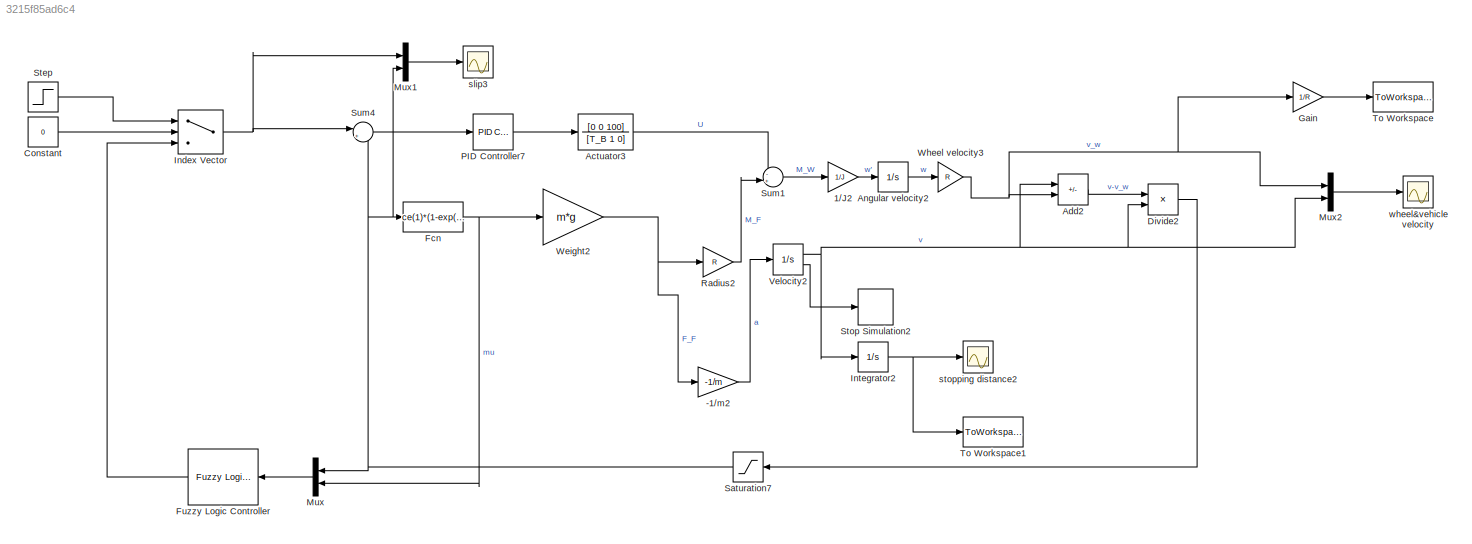
MODEL slx_3215f85ad6c4
KIND model
CONFIG AbsTol = auto
CONFIG EnableMultiTasking = off
CONFIG FixedStep = auto
CONFIG InitFcn = T_B = 0.1; \nJ = 1.13; \ng = 9.81;\nroad_coeff = [\n                1.2801 23.990 0.5200\n                0.8570 33.822 0.3470\n                1.1973 25.168 0.5373\n                0.4004 33.708 0.1204\n                0.1946 94.129 0.0646\n                0.0500 306.39 0.0010\n              ];\nload('ANFIS.mat','train_fis');\nce = road_coeff(sel,:); 
CONFIG MaxStep = auto
CONFIG MinStep = auto
CONFIG RelTol = 1e-3
CONFIG SampleTimeConstraint = Unconstrained
CONFIG SolverName = VariableStepAuto
CONFIG StartTime = 0.0
CONFIG StopTime = 60.0
BLOCK [Gain] -1//m2
  Gain = -1/m
BLOCK [Gain] 1//J2
  Gain = 1/J
BLOCK [TransferFcn] Actuator3
  Denominator = [T_B 1 0]
  Numerator = [0 0 100]
BLOCK [Sum] Add2
  IconShape = rectangular
  Inputs = +-
  Ports = [2, 1]
BLOCK [Integrator] Angular velocity2
  InitialCondition = v_x/R
  LimitOutput = on
  LowerSaturationLimit = 0
  Ports = [1, 1]
  UpperSaturationLimit = 1000
BLOCK [Constant] Constant
  Value = 0
BLOCK [Product] Divide2
  Inputs = */
  Ports = [2, 1]
BLOCK [Fcn] Fcn
  Expr = ce(1)*(1-exp(-ce(2)*u))-ce(3)*u
BLOCK [Reference] Fuzzy Logic Controller  REF=fuzblock/Fuzzy Logic   (lib defined in mdl_858b3b3e7478)
Controller
  Ports = [1, 1]
  SourceBlock = fuzblock/Fuzzy Logic \nController
  SourceProductBaseCode = FL
  SourceType = Fuzzy Inference System
BLOCK [Gain] Gain
  Gain = 1/R
BLOCK [MultiPortSwitch] Index Vector
  DataPortOrder = Zero-based contiguous
  InputSameDT = off
  Inputs = 2
  Ports = [3, 1]
  SaturateOnIntegerOverflow = off
  zeroidx = on
BLOCK [Integrator] Integrator2
  Ports = [1, 1]
BLOCK [Mux] Mux
  DisplayOption = bar
  Inputs = 2
  Ports = [2, 1]
BLOCK [Mux] Mux1
  DisplayOption = bar
  Inputs = 2
  Ports = [2, 1]
BLOCK [Mux] Mux2
  DisplayOption = bar
  Inputs = 2
  Ports = [2, 1]
BLOCK [Reference] PID Controller7  REF=pid_lib/PID Controller
  Ports = [1, 1]
  SourceBlock = pid_lib/PID Controller
  SourceProductBaseCode = SL
  SourceType = PID 1dof
BLOCK [Gain] Radius2
  Gain = R
BLOCK [Saturate] Saturation7
  LowerLimit = 0
  UpperLimit = 1
BLOCK [Step] Step
  SampleTime = 0
  Time = 5
BLOCK [Stop] Stop Simulation2
BLOCK [Sum] Sum1
  Inputs = -+|
  Ports = [2, 1]
BLOCK [Sum] Sum4
  Inputs = |+-
  Ports = [2, 1]
BLOCK [ToWorkspace] To Workspace
  FixptAsFi = on
  MaxDataPoints = inf
  Ports = [1]
  SampleTime = -1
  SaveFormat = Timeseries
  VariableName = wheel_v
BLOCK [ToWorkspace] To Workspace1
  FixptAsFi = on
  MaxDataPoints = inf
  Ports = [1]
  SampleTime = -1
  SaveFormat = Timeseries
  VariableName = stopping_d
BLOCK [Integrator] Velocity2
  InitialCondition = v_x
  LimitOutput = on
  LowerSaturationLimit = 1
  Ports = [1, 2]
  ShowSaturationPort = on
  UpperSaturationLimit = 1000
BLOCK [Gain] Weight2
  Gain = m*g
BLOCK [Gain] Wheel velocity3
  Gain = R
BLOCK [Scope] slip3
  Floating = off
  NumInputPorts = 1
  Ports = [1]
  ScopeSpecificationString = Simulink.scopes.TimeScopeBlockCfg('CurrentConfiguration', extmgr.ConfigurationSet(extmgr.Configuration('Core','General UI',true),extmgr.Configuration('Core','Source UI',true),extmgr.Configuration('Sources','WiredSimulink',true,'DataLoggingVariableName','slips_def','DataLogging',true,'DataLoggingSaveFormat','StructureWithTime'),extmgr.Configuration('Visuals','Time Domain',true,'SerializedDisplays',...<+1476ch>
BLOCK [Scope] stopping distance2
  Floating = off
  NumInputPorts = 1
  Ports = [1]
  ScopeSpecificationString = Simulink.scopes.TimeScopeBlockCfg('CurrentConfiguration', extmgr.ConfigurationSet(extmgr.Configuration('Core','General UI',true),extmgr.Configuration('Core','Source UI',true),extmgr.Configuration('Sources','WiredSimulink',true,'DataLoggingVariableName','stopping_dist_def','DataLogging',true,'DataLoggingSaveFormat','StructureWithTime'),extmgr.Configuration('Visuals','Time Domain',true,'SerializedDi...<+1446ch>
BLOCK [Scope] wheel&vehicle velocity
  Floating = off
  NumInputPorts = 1
  Ports = [1]
  ScopeSpecificationString = Simulink.scopes.TimeScopeBlockCfg('CurrentConfiguration', extmgr.ConfigurationSet(extmgr.Configuration('Core','General UI',true),extmgr.Configuration('Core','Source UI',true),extmgr.Configuration('Sources','WiredSimulink',true,'DataLoggingVariableName','velocities_def','DataLogging',true,'DataLoggingSaveFormat','StructureWithTime'),extmgr.Configuration('Visuals','Time Domain',true,'SerializedDispl...<+1437ch>
LINE -1//m2:1 -> Velocity2:1
LINE 1//J2:1 -> Angular velocity2:1
LINE Actuator3:1 -> Sum1:1
LINE Add2:1 -> Divide2:1
LINE Angular velocity2:1 -> Wheel velocity3:1
LINE Constant:1 -> Index Vector:2
LINE Divide2:1 -> Saturation7:1
NET Fcn:1 -> Mux:2, Weight2:1
LINE Fuzzy Logic Controller:1 -> Index Vector:3
LINE Gain:1 -> To Workspace:1
NET Index Vector:1 -> Mux1:1, Sum4:1
NET Integrator2:1 -> To Workspace1:1, stopping distance2:1
LINE Mux1:1 -> slip3:1
LINE Mux2:1 -> wheel&vehicle velocity:1
LINE Mux:1 -> Fuzzy Logic Controller:1
LINE PID Controller7:1 -> Actuator3:1
LINE Radius2:1 -> Sum1:2
NET Saturation7:1 -> Fcn:1, Mux1:2, Mux:1, Sum4:2
LINE Step:1 -> Index Vector:1
LINE Sum1:1 -> 1//J2:1
LINE Sum4:1 -> PID Controller7:1
NET Velocity2:1 -> Add2:1, Divide2:2, Integrator2:1, Mux2:2
LINE Velocity2:2 -> Stop Simulation2:1
NET Weight2:1 -> -1//m2:1, Radius2:1
NET Wheel velocity3:1 -> Add2:2, Gain:1, Mux2:1
note: NET lines group one-source signal fan-out (src -> all destinations, sorted); 1:1 wires keep LINE
